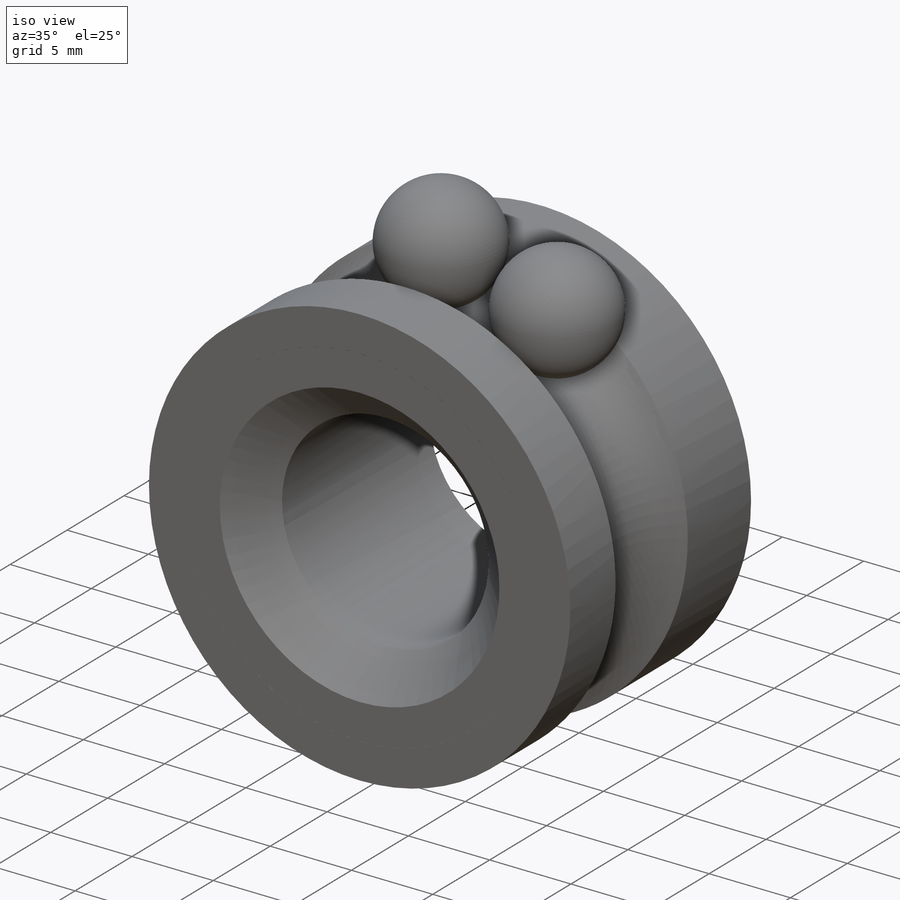
[diagram: iso view]
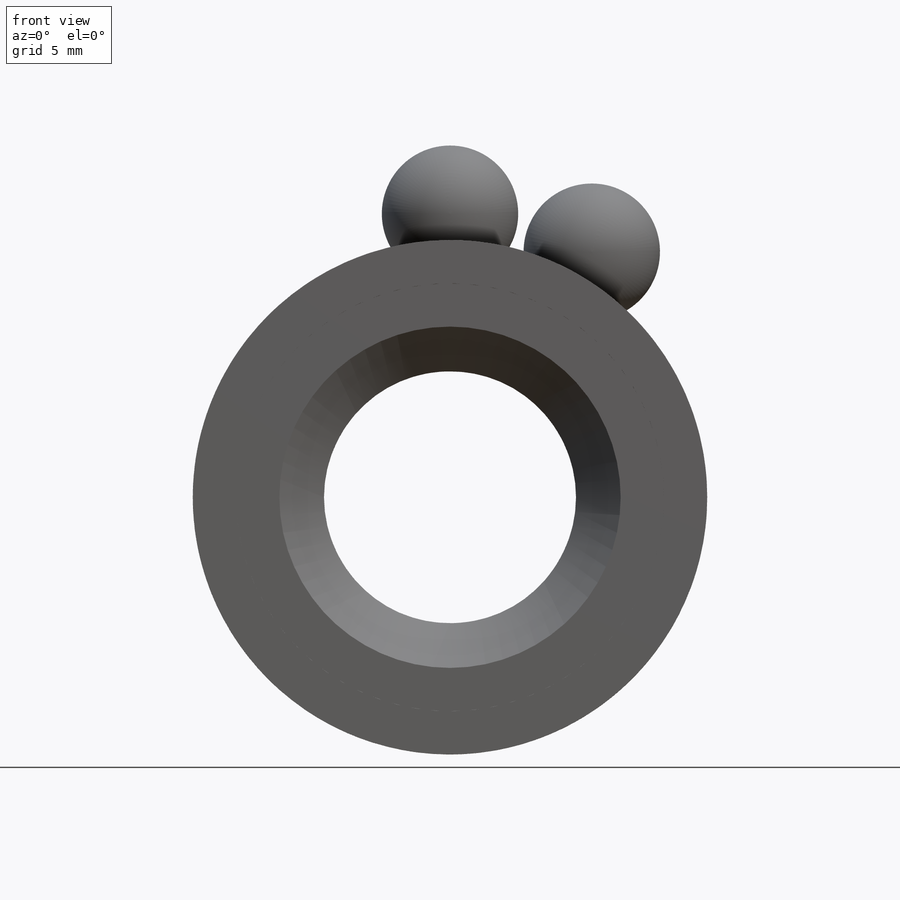
[diagram: front view]
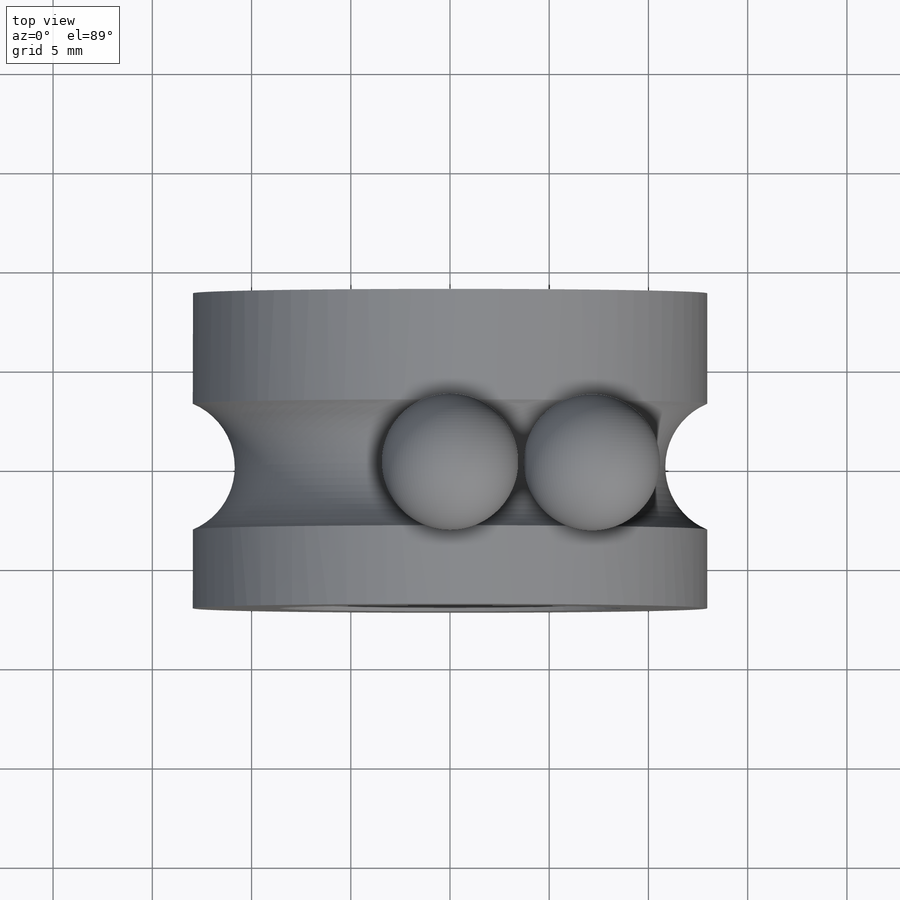
[diagram: top view]
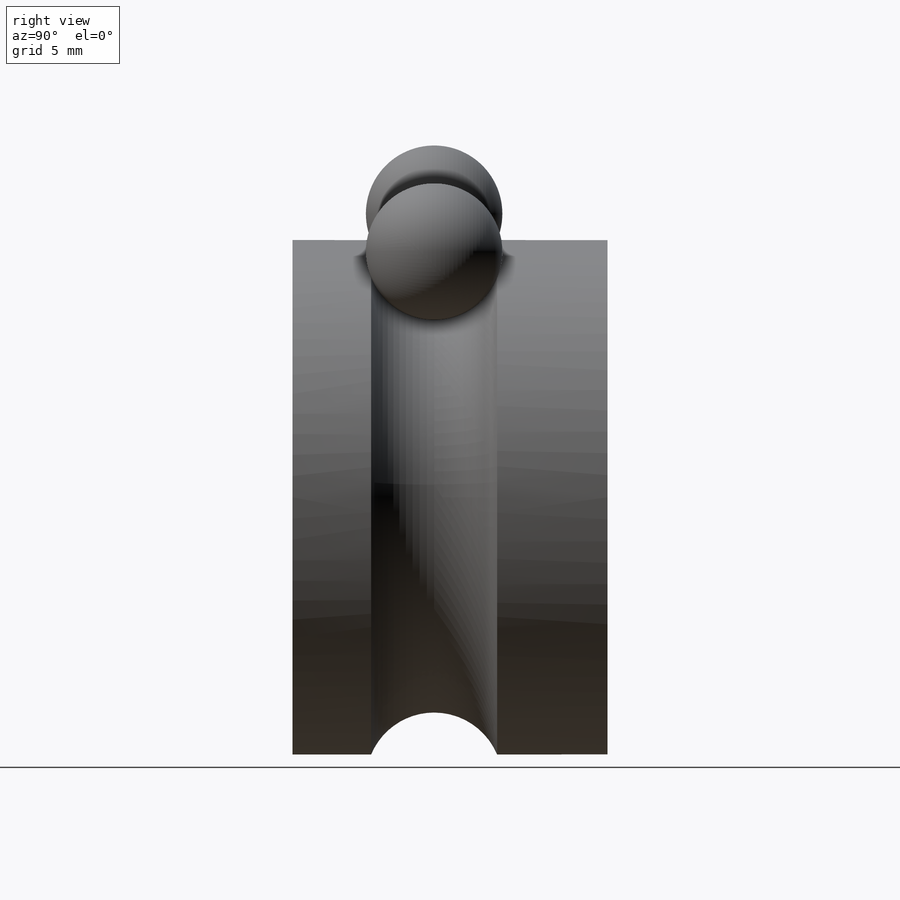
[diagram: right view]
SOLIDWORKS PART (.sldprt)
format: sldprt  version: not decoded by parser v0  size: 2,194,432 bytes
history: native  units: mm
features: sketch x6, revolve x5, material x1, cut_revolve x1, pattern_circular x1 (+14 scaffold rows collapsed)
feature tree (28):
  scaffold x14  (default folders/planes/origin — collapsed)
  material  "Material <not specified>"
  sketch  "Sketch1"  dims[c1.D3=~8.087863mm c1.Width=14.2748mm c1.OD=44.45mm c1.D1=~8.793076mm c2.D1=45.0deg c2.D2=~0.71374mm c2.Shaft Dia=12.7mm c2.D3=~6.344356mm c2.D4=~1.326382mm c2.Total Wd=15.875mm]
  revolve  "Revolve1"  Angle=360deg
  sketch  "Sketch2"  dims[c1.D1=~3.168868mm c2.D1=45.0deg]
  revolve  "Revolve2"  Angle=360deg
  sketch  "Sketch3"
  revolve  "Revolve3"  Angle=360deg
  sketch  "Sketch5"  dims[D1=1.5875mm Flange OD=47.625mm]
  revolve  "Revolve5"  Angle=360deg
  sketch  "Sketch6"  dims[D1=~0.396875mm]
  cut_revolve  "Cut-Revolve1"  Angle=360deg
  sketch  "Sketch4"
  revolve  "Revolve4"  Angle=360deg
  pattern_circular  "CirPattern1"  Count=12 Angle=30deg Balls=12
decode coverage: 11 of 13 modeling features carry decoded parameters
note: ~ marks probable driven/reference dimensions
note: suppression state not decoded; provenance and decode notes live in map.json
